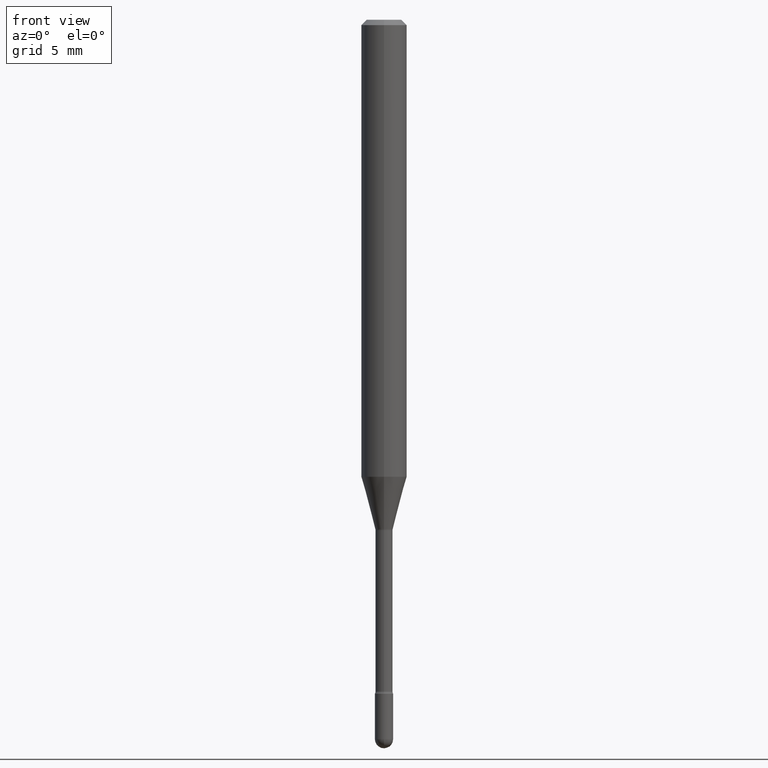
[diagram: clean part render]
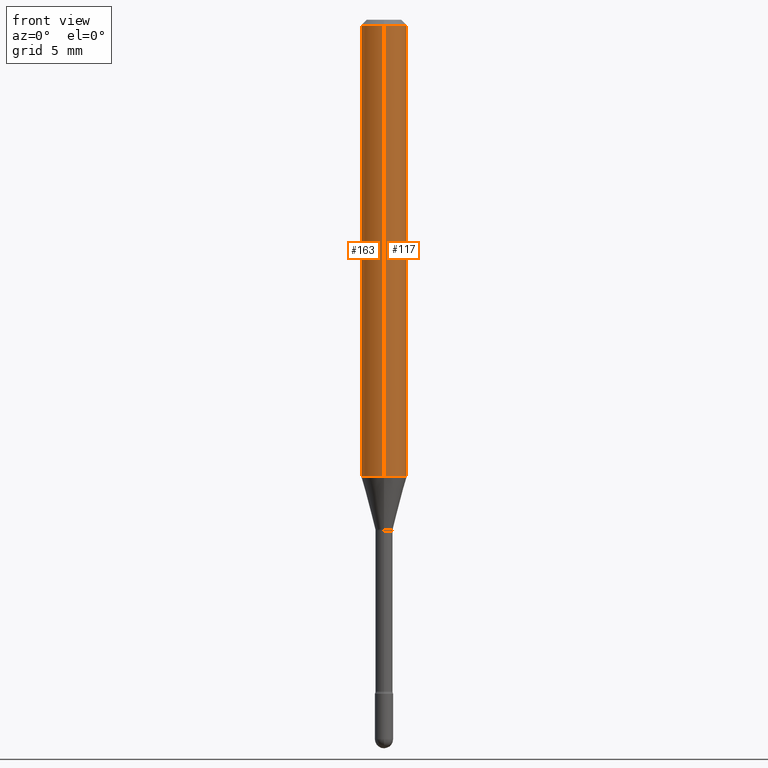
[diagram: same view with one multi-face feature highlighted, each face labeled with its STEP entity id]
A machine part, front view. The highlighted faces form ONE feature: a constant-radius fillet chain: 2 tangent blend faces with common blend radius 1.5875 mm. The faces share edges in the B-rep.
Their STEP definitions:
[1] entity #117 (Cylinder):
#30 = DIRECTION ( 'NONE',  ( -2.445515165331157393E-29, 3.491414949907444887E-15, 1.000000000000000000 ) ) ;
#39 = ORIENTED_EDGE ( 'NONE', *, *, #292, .F. ) ;
#40 = DIRECTION ( 'NONE',  ( -6.982962677686265922E-15, -1.000000000000000000, 3.491414949907445676E-15 ) ) ;
#61 = CARTESIAN_POINT ( 'NONE',  ( 4.440892098500930859E-16, 0.06249999999999559380, -1.254450018504814635 ) ) ;
#77 = EDGE_CURVE ( 'NONE', #401, #114, #522, .T. ) ;
#86 = VERTEX_POINT ( 'NONE', #131 ) ;
#88 = DIRECTION ( 'NONE',  ( -2.445515165331157393E-29, 3.491414949907444887E-15, 1.000000000000000000 ) ) ;
#114 = VERTEX_POINT ( 'NONE', #187 ) ;
#117 = ADVANCED_FACE ( 'NONE', ( #538 ), #509, .T. ) ;
#119 = CARTESIAN_POINT ( 'NONE',  ( 3.668272747996756163E-31, -5.237122424861196839E-17, -0.01500000000000008271 ) ) ;
#122 = DIRECTION ( 'NONE',  ( -6.982962677686265922E-15, -1.000000000000000000, 4.370956789862821150E-15 ) ) ;
#125 = CARTESIAN_POINT ( 'NONE',  ( 3.067776544403474457E-29, -4.379805548519381130E-15, -1.254450018504814413 ) ) ;
#131 = CARTESIAN_POINT ( 'NONE',  ( -4.364351673553610517E-16, -0.06250000000000439926, -1.254450018504814190 ) ) ;
#154 = CARTESIAN_POINT ( 'NONE',  ( -1.169113584055446105E-44, 1.669184350826100908E-30, 4.780733988912460139E-16 ) ) ;
#168 = DIRECTION ( 'NONE',  ( -2.445515165331157393E-29, 3.491414949907445282E-15, 1.000000000000000000 ) ) ;
#181 = EDGE_CURVE ( 'NONE', #86, #401, #302, .T. ) ;
#187 = CARTESIAN_POINT ( 'NONE',  ( 4.440892098500934804E-16, 0.06249999999999995143, -0.01500000000000030129 ) ) ;
#189 = EDGE_CURVE ( 'NONE', #460, #114, #519, .T. ) ;
#195 = AXIS2_PLACEMENT_3D ( 'NONE', #154, #357, #40 ) ;
#226 = ORIENTED_EDGE ( 'NONE', *, *, #181, .T. ) ;
#263 = AXIS2_PLACEMENT_3D ( 'NONE', #119, #168, #431 ) ;
#278 = ORIENTED_EDGE ( 'NONE', *, *, #189, .F. ) ;
#292 = EDGE_CURVE ( 'NONE', #86, #460, #391, .T. ) ;
#302 = CIRCLE ( 'NONE', #309, 0.06250000000000000000 ) ;
#309 = AXIS2_PLACEMENT_3D ( 'NONE', #125, #560, #122 ) ;
#338 = ORIENTED_EDGE ( 'NONE', *, *, #77, .T. ) ;
#357 = DIRECTION ( 'NONE',  ( -2.445515165331157393E-29, 3.491414949907445282E-15, 1.000000000000000000 ) ) ;
#377 = VECTOR ( 'NONE', #88, 39.37007874015748143 ) ;
#391 = LINE ( 'NONE', #475, #377 ) ;
#401 = VERTEX_POINT ( 'NONE', #61 ) ;
#405 = CARTESIAN_POINT ( 'NONE',  ( -4.364351673553912750E-16, -0.06250000000000005551, -0.01499999999999986587 ) ) ;
#431 = DIRECTION ( 'NONE',  ( -6.982962677686265922E-15, -1.000000000000000000, 3.483106191921935554E-15 ) ) ;
#438 = EDGE_LOOP ( 'NONE', ( #226, #338, #278, #39 ) ) ;
#460 = VERTEX_POINT ( 'NONE', #405 ) ;
#475 = CARTESIAN_POINT ( 'NONE',  ( -4.364351673553916201E-16, -0.06250000000000000000, 6.962868332604614180E-16 ) ) ;
#494 = VECTOR ( 'NONE', #30, 39.37007874015748143 ) ;
#509 = CYLINDRICAL_SURFACE ( 'NONE', #195, 0.06250000000000000000 ) ;
#519 = CIRCLE ( 'NONE', #263, 0.06250000000000000000 ) ;
#522 = LINE ( 'NONE', #557, #494 ) ;
#538 = FACE_OUTER_BOUND ( 'NONE', #438, .T. ) ;
#557 = CARTESIAN_POINT ( 'NONE',  ( 4.440892098500625669E-16, 0.06250000000000000000, 2.598599645220307578E-16 ) ) ;
#560 = DIRECTION ( 'NONE',  ( -2.445515165331157393E-29, 3.491414949907445282E-15, 1.000000000000000000 ) ) ;
[2] entity #163 (Cylinder):
#5 = DIRECTION ( 'NONE',  ( -2.445515165331157393E-29, 3.491414949907445282E-15, 1.000000000000000000 ) ) ;
#7 = DIRECTION ( 'NONE',  ( -2.445515165331157393E-29, 3.491414949907445282E-15, 1.000000000000000000 ) ) ;
#16 = AXIS2_PLACEMENT_3D ( 'NONE', #351, #48, #305 ) ;
#30 = DIRECTION ( 'NONE',  ( -2.445515165331157393E-29, 3.491414949907444887E-15, 1.000000000000000000 ) ) ;
#43 = CARTESIAN_POINT ( 'NONE',  ( 3.668272747996756163E-31, -5.237122424861196839E-17, -0.01500000000000008271 ) ) ;
#48 = DIRECTION ( 'NONE',  ( -2.445515165331157393E-29, 3.491414949907445282E-15, 1.000000000000000000 ) ) ;
#61 = CARTESIAN_POINT ( 'NONE',  ( 4.440892098500930859E-16, 0.06249999999999559380, -1.254450018504814635 ) ) ;
#77 = EDGE_CURVE ( 'NONE', #401, #114, #522, .T. ) ;
#86 = VERTEX_POINT ( 'NONE', #131 ) ;
#88 = DIRECTION ( 'NONE',  ( -2.445515165331157393E-29, 3.491414949907444887E-15, 1.000000000000000000 ) ) ;
#114 = VERTEX_POINT ( 'NONE', #187 ) ;
#131 = CARTESIAN_POINT ( 'NONE',  ( -4.364351673553610517E-16, -0.06250000000000439926, -1.254450018504814190 ) ) ;
#163 = ADVANCED_FACE ( 'NONE', ( #271 ), #383, .T. ) ;
#166 = ORIENTED_EDGE ( 'NONE', *, *, #77, .F. ) ;
#180 = DIRECTION ( 'NONE',  ( -6.982962677686265922E-15, -1.000000000000000000, 3.491414949907445676E-15 ) ) ;
#187 = CARTESIAN_POINT ( 'NONE',  ( 4.440892098500934804E-16, 0.06249999999999995143, -0.01500000000000030129 ) ) ;
#198 = AXIS2_PLACEMENT_3D ( 'NONE', #43, #7, #218 ) ;
#199 = EDGE_CURVE ( 'NONE', #401, #86, #511, .T. ) ;
#216 = ORIENTED_EDGE ( 'NONE', *, *, #199, .T. ) ;
#218 = DIRECTION ( 'NONE',  ( -6.982962677686265922E-15, -1.000000000000000000, 3.483106191921935554E-15 ) ) ;
#271 = FACE_OUTER_BOUND ( 'NONE', #373, .T. ) ;
#292 = EDGE_CURVE ( 'NONE', #86, #460, #391, .T. ) ;
#299 = EDGE_CURVE ( 'NONE', #114, #460, #443, .T. ) ;
#305 = DIRECTION ( 'NONE',  ( -6.982962677686265922E-15, -1.000000000000000000, 4.370956789862821150E-15 ) ) ;
#313 = CARTESIAN_POINT ( 'NONE',  ( -1.169113584055446105E-44, 1.669184350826100908E-30, 4.780733988912460139E-16 ) ) ;
#351 = CARTESIAN_POINT ( 'NONE',  ( 3.067776544403474457E-29, -4.379805548519381130E-15, -1.254450018504814413 ) ) ;
#373 = EDGE_LOOP ( 'NONE', ( #166, #216, #553, #464 ) ) ;
#377 = VECTOR ( 'NONE', #88, 39.37007874015748143 ) ;
#383 = CYLINDRICAL_SURFACE ( 'NONE', #558, 0.06250000000000000000 ) ;
#391 = LINE ( 'NONE', #475, #377 ) ;
#401 = VERTEX_POINT ( 'NONE', #61 ) ;
#405 = CARTESIAN_POINT ( 'NONE',  ( -4.364351673553912750E-16, -0.06250000000000005551, -0.01499999999999986587 ) ) ;
#443 = CIRCLE ( 'NONE', #198, 0.06250000000000000000 ) ;
#460 = VERTEX_POINT ( 'NONE', #405 ) ;
#464 = ORIENTED_EDGE ( 'NONE', *, *, #299, .F. ) ;
#475 = CARTESIAN_POINT ( 'NONE',  ( -4.364351673553916201E-16, -0.06250000000000000000, 6.962868332604614180E-16 ) ) ;
#494 = VECTOR ( 'NONE', #30, 39.37007874015748143 ) ;
#511 = CIRCLE ( 'NONE', #16, 0.06250000000000000000 ) ;
#522 = LINE ( 'NONE', #557, #494 ) ;
#553 = ORIENTED_EDGE ( 'NONE', *, *, #292, .T. ) ;
#557 = CARTESIAN_POINT ( 'NONE',  ( 4.440892098500625669E-16, 0.06250000000000000000, 2.598599645220307578E-16 ) ) ;
#558 = AXIS2_PLACEMENT_3D ( 'NONE', #313, #5, #180 ) ;